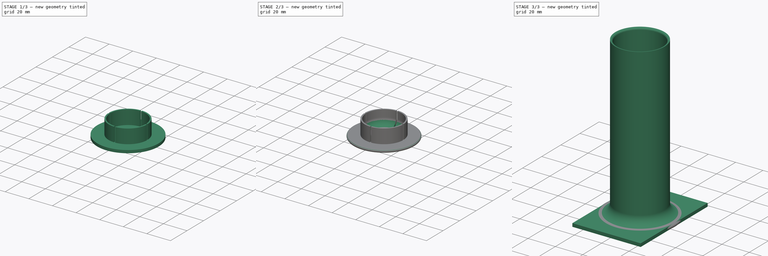
[diagram: build sequence overview — one tinted view per stage of 3, left to right]
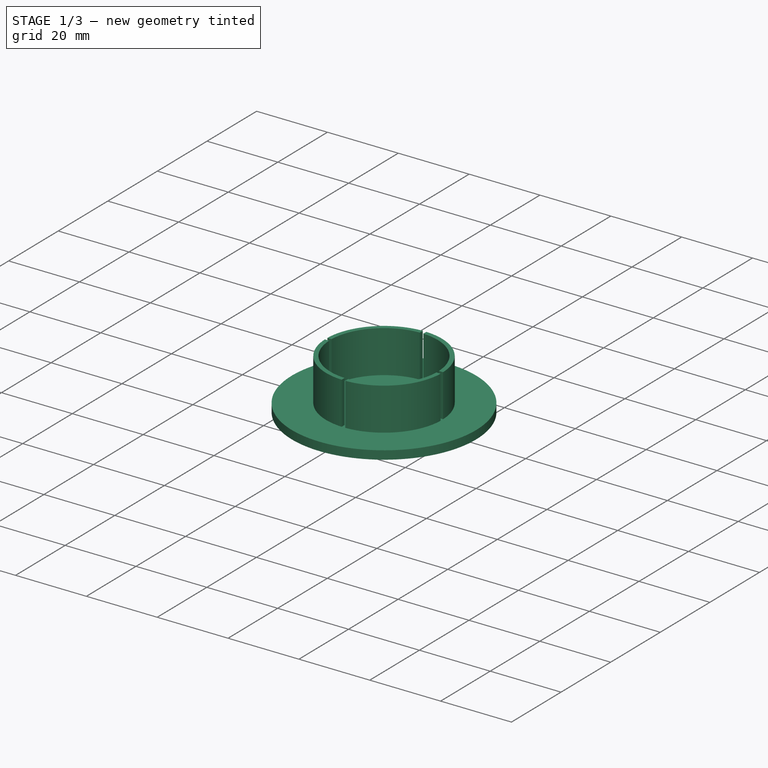
[diagram: stage 1 of 3 — iso view after this stage's code; geometry added in this stage tinted green]
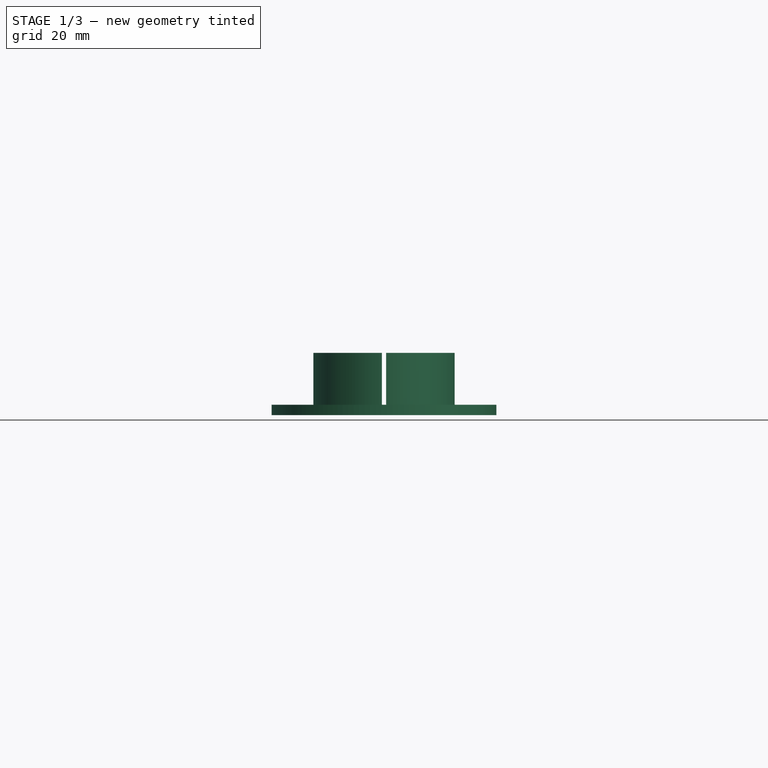
[diagram: stage 1 of 3 — front view after this stage's code; geometry added in this stage tinted green]
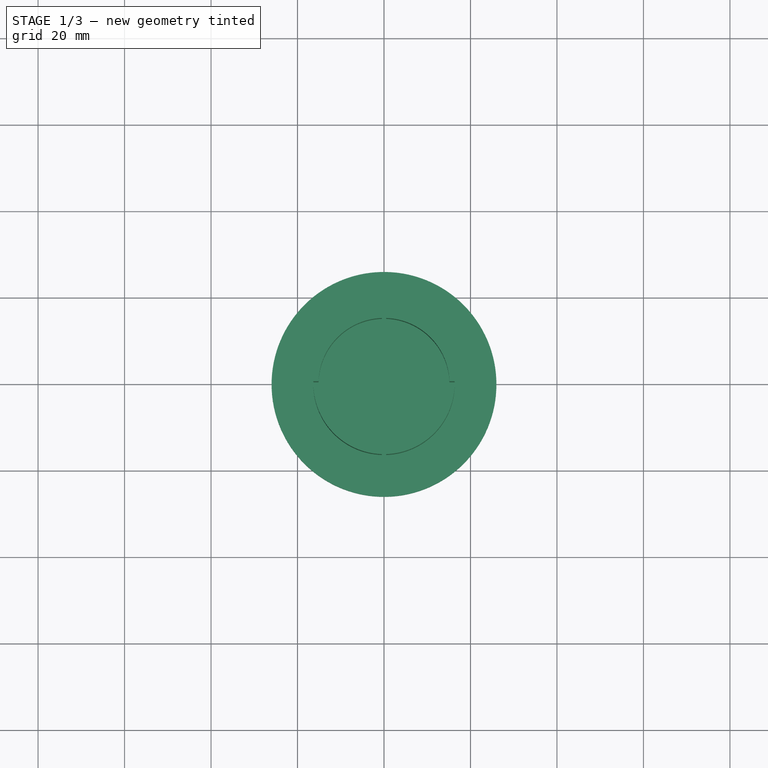
[diagram: stage 1 of 3 — top view after this stage's code; geometry added in this stage tinted green]
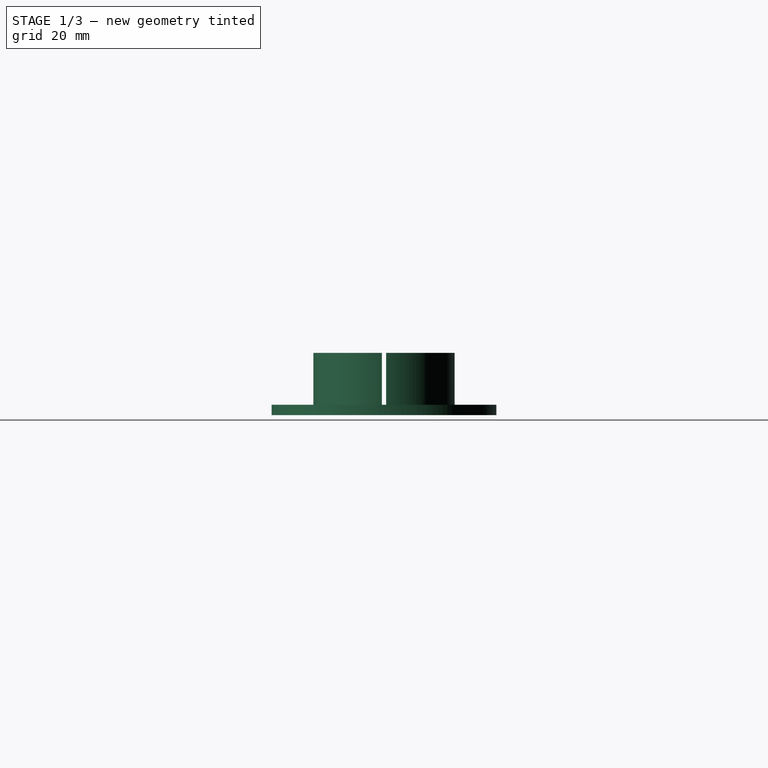
[diagram: stage 1 of 3 — right view after this stage's code; geometry added in this stage tinted green]
FCSTD DOCUMENT  (FreeCAD 0.18.3R)
Label: ToiletPaperHolder2
License: All rights reserved
LicenseURL: http://en.wikipedia.org/wiki/All_rights_reserved
objects: Sketcher::SketchObject×4, PartDesign::Pad×4, PartDesign::Fillet×4, PartDesign::Body×2, App::Part×1
note: 18 computed .brp shape members not serialized (recipe doc carries the construction recipe); baked Part::Feature solids carry a one-line shape summary decoded from their .brp

FEATURE [Sketcher::SketchObject] Sketch
  AttachmentOffset = pos=(0,0,2.4) rot=(0,0,1;0rad)
  MapMode = 5
  Placement = pos=(0,0,2.4) rot=(0,0,1;0rad)
  Support = -> [XY_Plane001]
  expr: AttachmentOffset.Base.z = Pad.Length
  sketch-geometry (3):
    g0: Circle CenterX=0 CenterY=0 CenterZ=0 NormalX=0 NormalY=0 NormalZ=1 AngleXU=0 Radius=18
    g1: Circle CenterX=0 CenterY=0 CenterZ=0 NormalX=0 NormalY=0 NormalZ=1 AngleXU=0 Radius=16.4
    g2: LineSegment [constr] StartX=0 StartY=16.4 StartZ=0 EndX=0 EndY=18 EndZ=0
  constraints (8):
    c: Coincident(g0,g-1)
    c: Radius(g0) = 18  'Outer'
    c: Coincident(g1,g0)
    c: PointOnObject(g2,g1)
    c: PointOnObject(g2,g0)
    c: Vertical(g2)
    c: PointOnObject(g0,g2)
    c: DistanceY(g2,g2) = 1.6  'WallThickness'
FEATURE [Sketcher::SketchObject] Sketch001
  MapMode = 5
  Support = -> [XY_Plane001]
  sketch-geometry (4):
    g0: LineSegment StartX=-25 StartY=35 StartZ=0 EndX=25 EndY=35 EndZ=0
    g1: LineSegment StartX=25 StartY=35 StartZ=0 EndX=25 EndY=-35 EndZ=0
    g2: LineSegment StartX=25 StartY=-35 StartZ=0 EndX=-25 EndY=-35 EndZ=0
    g3: LineSegment StartX=-25 StartY=-35 StartZ=0 EndX=-25 EndY=35 EndZ=0
  constraints (11):
    c: Coincident(g0,g1)
    c: Coincident(g1,g2)
    c: Coincident(g2,g3)
    c: Coincident(g3,g0)
    c: Horizontal(g0)
    c: Horizontal(g2)
    c: Vertical(g1)
    c: Vertical(g3)
    c: DistanceX(g0,g0) = 50  'BaseWidth'
    c: Symmetric(g2,g0,g-1)
    c: DistanceY(g3,g3) = 70
FEATURE [PartDesign::Pad] Pad
  Length = 2.4
  Length2 = 100
  Profile = -> Sketch001
  Type = 0
FEATURE [PartDesign::Pad] Pad002
  Length = 2.4
  Length2 = 100
  Profile = -> Sketch002
  Type = 0
FEATURE [Sketcher::SketchObject] Sketch003
  AttachmentOffset = pos=(0,0,2.4) rot=(0,0,1;0rad)
  MapMode = 5
  Placement = pos=(0,0,2.4) rot=(0,0,1;0rad)
  Support = -> [XY_Plane002]
  expr: Constraints[74] = Constraints.R - 1.2mm
  expr: Constraints.R = Sketch.Constraints.Outer - Sketch.Constraints.WallThickness - 0.05mm
  expr: AttachmentOffset.Base.z = Pad002.Length
  sketch-geometry (28):
    g0: LineSegment [constr] StartX=-15.1417 StartY=0.5 StartZ=0 EndX=-0.5 EndY=0.5 EndZ=0
    g1: LineSegment [constr] StartX=-0.5 StartY=0.5 StartZ=0 EndX=-0.5 EndY=15.1417 EndZ=0
    g2: LineSegment [constr] StartX=-0.5 StartY=15.1417 StartZ=0 EndX=0.5 EndY=15.1417 EndZ=0
    g3: LineSegment [constr] StartX=0.5 StartY=15.1417 StartZ=0 EndX=0.5 EndY=0.5 EndZ=0
    g4: LineSegment [constr] StartX=0.5 StartY=0.5 StartZ=0 EndX=15.1417 EndY=0.5 EndZ=0
    g5: LineSegment [constr] StartX=15.1417 StartY=0.5 StartZ=0 EndX=15.1417 EndY=-0.5 EndZ=0
    g6: LineSegment [constr] StartX=15.1417 StartY=-0.5 StartZ=0 EndX=0.5 EndY=-0.5 EndZ=0
    g7: LineSegment [constr] StartX=0.5 StartY=-0.5 StartZ=0 EndX=0.5 EndY=-15.1417 EndZ=0
    g8: LineSegment [constr] StartX=0.5 StartY=-15.1417 StartZ=0 EndX=-0.5 EndY=-15.1417 EndZ=0
    g9: LineSegment [constr] StartX=-0.5 StartY=-15.1417 StartZ=0 EndX=-0.5 EndY=-0.5 EndZ=0
    g10: LineSegment [constr] StartX=-0.5 StartY=-0.5 StartZ=0 EndX=-15.1417 EndY=-0.5 EndZ=0
    g11: LineSegment [constr] StartX=-15.1417 StartY=-0.5 StartZ=0 EndX=-15.1417 EndY=0.5 EndZ=0
    g12: ArcOfCircle CenterX=0 CenterY=0 CenterZ=0 NormalX=0 NormalY=0 NormalZ=1 AngleXU=0 Radius=15.15 StartAngle=1.60381 EndAngle=3.10858
    g13: ArcOfCircle CenterX=0 CenterY=0 CenterZ=0 NormalX=0 NormalY=0 NormalZ=1 AngleXU=0 Radius=15.15 StartAngle=0.0330093 EndAngle=1.53779
    g14: ArcOfCircle CenterX=0 CenterY=0 CenterZ=0 NormalX=0 NormalY=0 NormalZ=1 AngleXU=0 Radius=15.15 StartAngle=4.7454 EndAngle=6.25018
    g15: ArcOfCircle CenterX=0 CenterY=0 CenterZ=0 NormalX=0 NormalY=0 NormalZ=1 AngleXU=0 Radius=15.15 StartAngle=3.1746 EndAngle=4.67938
    g16: LineSegment StartX=-15.1417 StartY=-0.5 StartZ=0 EndX=-16.3424 EndY=-0.5 EndZ=0
    g17: ArcOfCircle CenterX=0 CenterY=0 CenterZ=0 NormalX=0 NormalY=0 NormalZ=1 AngleXU=0 Radius=16.35 StartAngle=3.17218 EndAngle=4.6818
    g18: LineSegment StartX=-0.5 StartY=-15.1417 StartZ=0 EndX=-0.5 EndY=-16.3424 EndZ=0
    g19: LineSegment StartX=-15.1417 StartY=0.5 StartZ=0 EndX=-16.3424 EndY=0.5 EndZ=0
    g20: LineSegment StartX=-0.5 StartY=15.1417 StartZ=0 EndX=-0.5 EndY=16.3424 EndZ=0
    g21: LineSegment StartX=0.5 StartY=15.1417 StartZ=0 EndX=0.5 EndY=16.3424 EndZ=0
    g22: LineSegment StartX=15.1417 StartY=0.5 StartZ=0 EndX=16.3424 EndY=0.5 EndZ=0
    g23: LineSegment StartX=15.1417 StartY=-0.5 StartZ=0 EndX=16.3424 EndY=-0.5 EndZ=0
    g24: LineSegment StartX=0.5 StartY=-15.1417 StartZ=0 EndX=0.5 EndY=-16.3424 EndZ=0
    g25: ArcOfCircle CenterX=0 CenterY=0 CenterZ=0 NormalX=0 NormalY=0 NormalZ=1 AngleXU=0 Radius=16.35 StartAngle=1.60138 EndAngle=3.11101
    g26: ArcOfCircle CenterX=0 CenterY=0 CenterZ=0 NormalX=0 NormalY=0 NormalZ=1 AngleXU=0 Radius=16.35 StartAngle=0.0305858 EndAngle=1.54021
    g27: ArcOfCircle CenterX=0 CenterY=0 CenterZ=0 NormalX=0 NormalY=0 NormalZ=1 AngleXU=0 Radius=16.35 StartAngle=4.74297 EndAngle=6.2526
  constraints (75):
    c: Horizontal(g0)
    c: Coincident(g0,g1)
    c: Vertical(g1)
    c: Coincident(g1,g2)
    c: Coincident(g2,g3)
    c: Vertical(g3)
    c: Coincident(g3,g4)
    c: Horizontal(g4)
    c: Coincident(g4,g5)
    c: Vertical(g5)
    c: Coincident(g5,g6)
    c: Horizontal(g6)
    c: Coincident(g6,g7)
    c: Coincident(g7,g8)
    c: Coincident(g8,g9)
    c: Coincident(g9,g10)
    c: Coincident(g10,g11)
    c: Coincident(g11,g0)
    c: Equal(g11,g2)
    c: Equal(g2,g5)
    c: Equal(g5,g8)
    c: Equal(g1,g0)
    c: Equal(g0,g10)
    c: Equal(g10,g9)
    c: Equal(g9,g7)
    c: Equal(g7,g6)
    c: Equal(g6,g4)
    c: Equal(g4,g3)
    c: Symmetric(g9,g3,g-1)
    c: Coincident(g12,g-1)
    c: Coincident(g12,g0)
    c: Coincident(g12,g1)
    c: Coincident(g13,g12)
    c: Coincident(g13,g2)
    c: Coincident(g13,g4)
    c: Coincident(g14,g12)
    c: Coincident(g14,g5)
    c: Coincident(g14,g7)
    c: Coincident(g15,g12)
    c: Coincident(g15,g8)
    c: Coincident(g15,g10)
    c: DistanceY(g11,g11) = 1
    c: Coincident(g16,g15)
    c: Horizontal(g16)
    c: Coincident(g17,g12)
    c: Coincident(g17,g16)
    c: Coincident(g18,g15)
    c: Coincident(g18,g17)
    c: Vertical(g18)
    c: Coincident(g19,g12)
    c: Horizontal(g19)
    c: Coincident(g20,g12)
    c: Vertical(g20)
    c: Coincident(g21,g13)
    c: Vertical(g21)
    c: Coincident(g22,g13)
    c: Horizontal(g22)
    c: Coincident(g23,g14)
    c: Horizontal(g23)
    c: Coincident(g24,g14)
    c: Vertical(g24)
    c: Coincident(g25,g12)
    c: Coincident(g25,g19)
    c: Coincident(g25,g20)
    c: Coincident(g26,g12)
    c: Coincident(g26,g21)
    c: Coincident(g26,g22)
    c: Coincident(g27,g12)
    c: Coincident(g27,g23)
    c: Coincident(g27,g24)
    c: Equal(g27,g17)
    c: Equal(g17,g26)
    c: Equal(g26,g25)
    c: Radius(g26) = 16.35  'R'
    c: Radius(g13) = 15.15
FEATURE [PartDesign::Pad] Pad003
  BaseFeature = -> Pad002
  Length = 12
  Length2 = 100
  Profile = -> Sketch003
  Type = 0
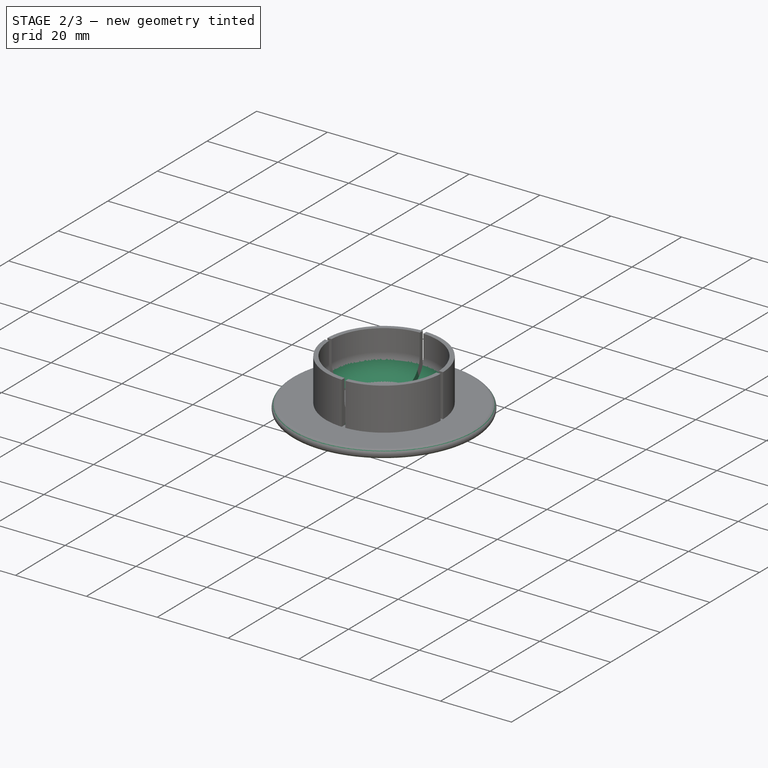
[diagram: stage 2 of 3 — iso view after this stage's code; geometry added in this stage tinted green]
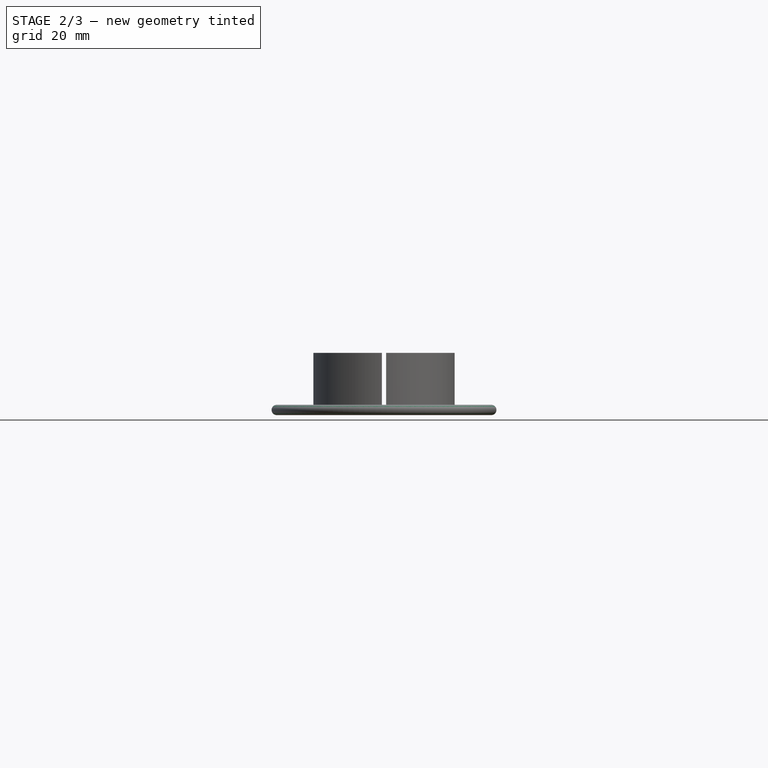
[diagram: stage 2 of 3 — front view after this stage's code; geometry added in this stage tinted green]
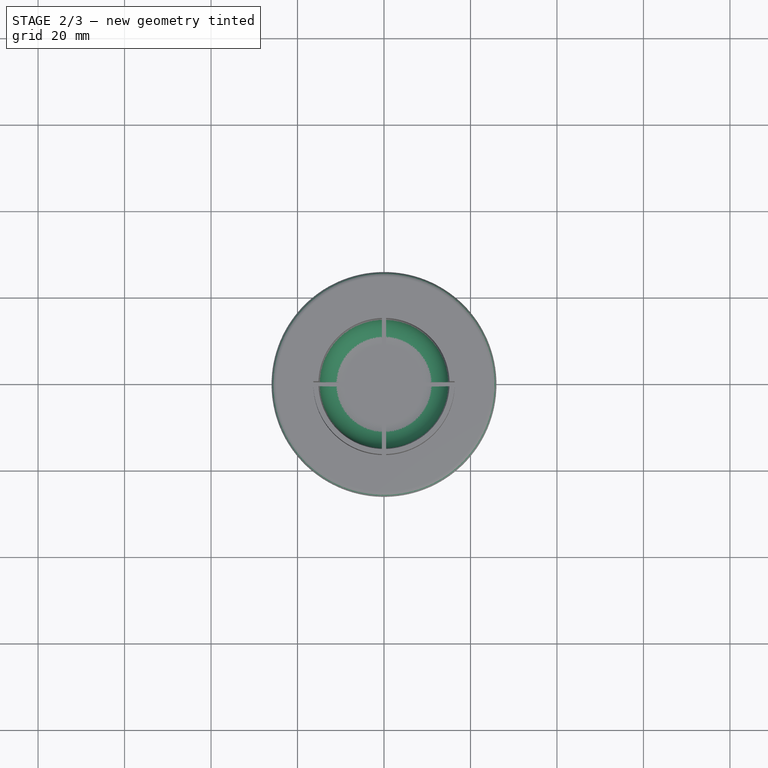
[diagram: stage 2 of 3 — top view after this stage's code; geometry added in this stage tinted green]
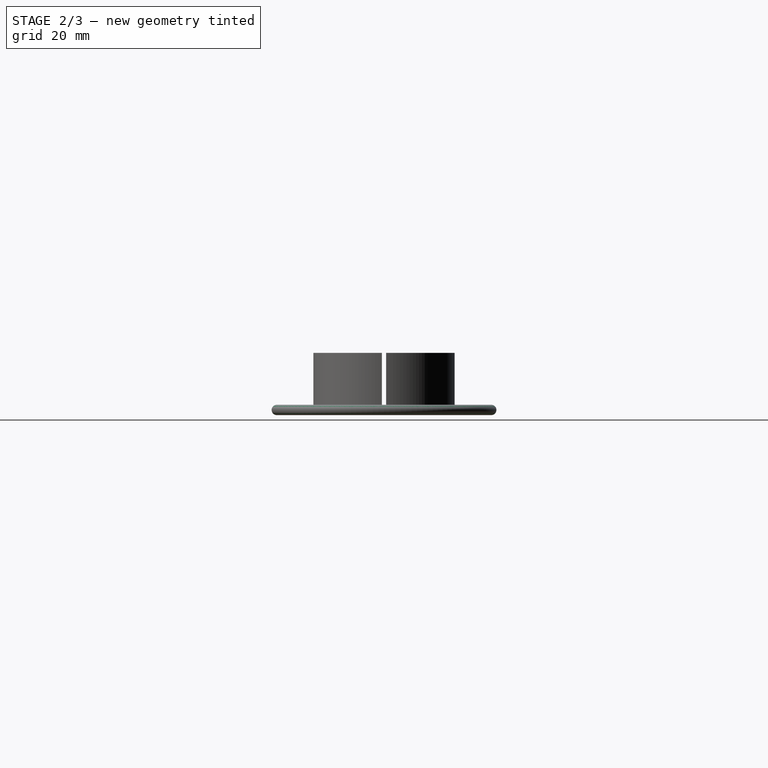
[diagram: stage 2 of 3 — right view after this stage's code; geometry added in this stage tinted green]
FEATURE [PartDesign::Fillet] Fillet002
  Base = -> Pad003 [Edge11,Edge19,Edge15,Edge7]
  BaseFeature = -> Pad003
  Radius = 6
FEATURE [PartDesign::Body] Body
  Group = -> [Sketch001,Pad,Sketch,Pad001,Fillet,Fillet003]
  Origin = -> Origin001
  Tip = -> Fillet003
FEATURE [PartDesign::Fillet] Fillet004
  Base = -> Fillet002 [Face6]
  BaseFeature = -> Fillet002
  Radius = 1.19
  expr: Radius = Pad002.Length / 2 - 0.01mm
FEATURE [PartDesign::Body] Body001
  Group = -> [Sketch002,Pad002,Sketch003,Pad003,Fillet002,Fillet004]
  Origin = -> Origin002
  Placement = pos=(60,0,0) rot=(0,0,1;0rad)
  Tip = -> Fillet004
FEATURE [App::Part] Part
  Group = -> [Body,Body001]
  Origin = -> Origin
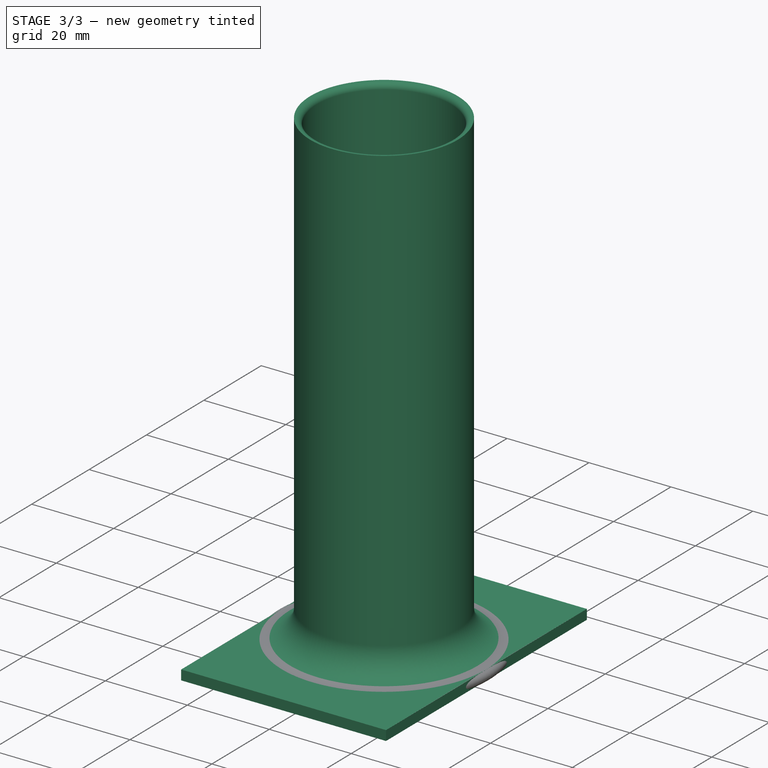
[diagram: stage 3 of 3 — iso view after this stage's code; geometry added in this stage tinted green]
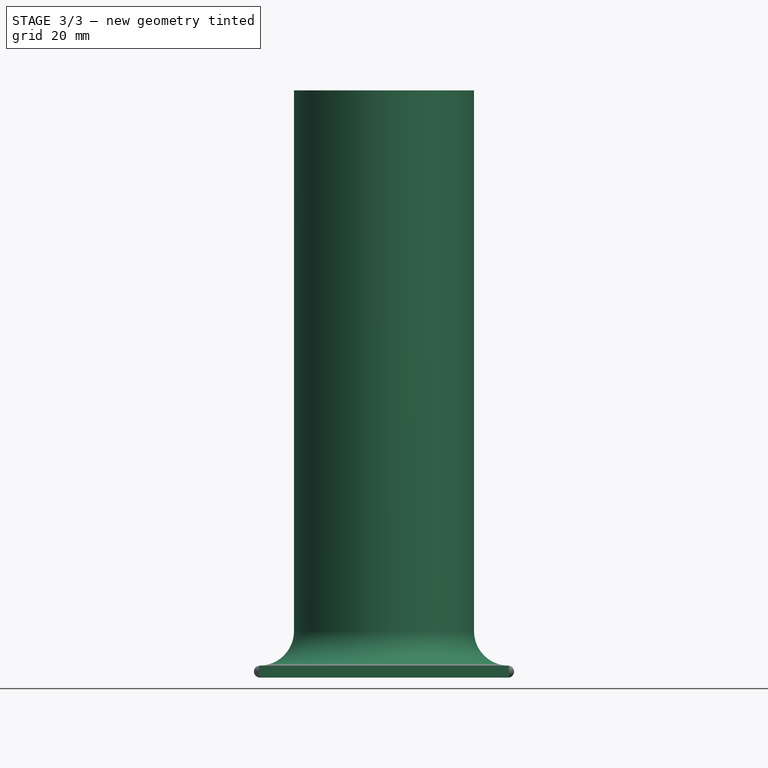
[diagram: stage 3 of 3 — front view after this stage's code; geometry added in this stage tinted green]
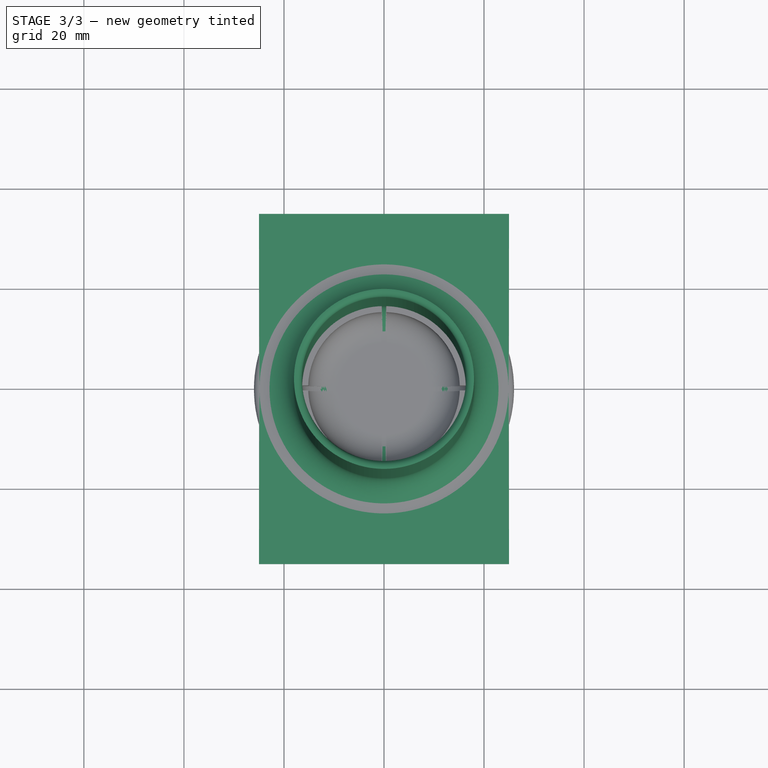
[diagram: stage 3 of 3 — top view after this stage's code; geometry added in this stage tinted green]
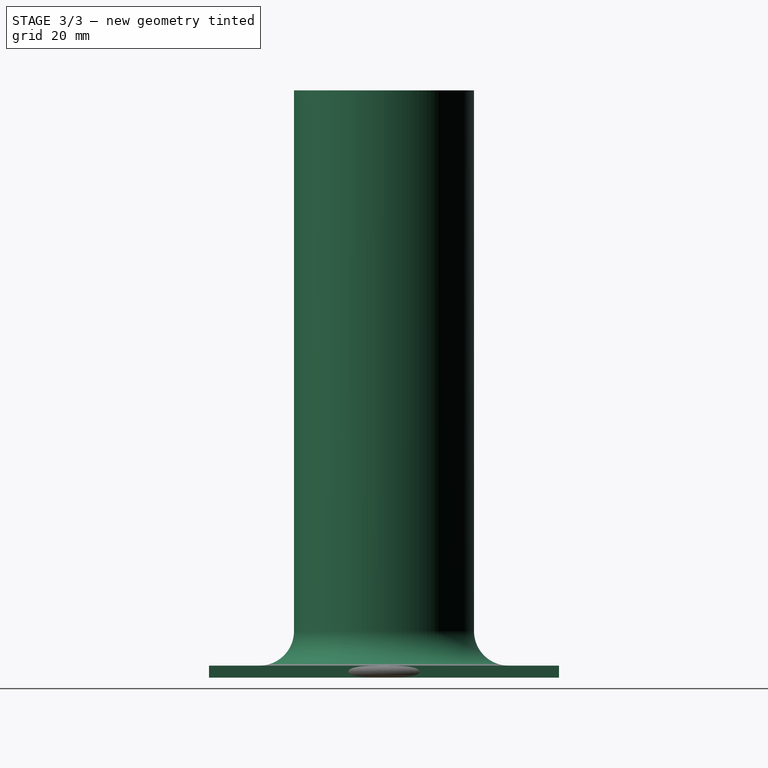
[diagram: stage 3 of 3 — right view after this stage's code; geometry added in this stage tinted green]
FEATURE [PartDesign::Pad] Pad001
  BaseFeature = -> Pad
  Length = 115
  Length2 = 100
  Profile = -> Sketch
  Type = 0
FEATURE [Sketcher::SketchObject] Sketch002
  MapMode = 5
  Support = -> [XY_Plane002]
  expr: Constraints[1] = Sketch.Constraints.Outer + 8mm
  sketch-geometry (1):
    g0: Circle CenterX=0 CenterY=0 CenterZ=0 NormalX=0 NormalY=0 NormalZ=1 AngleXU=0 Radius=26
  constraints (2):
    c: Coincident(g0,g-1)
    c: Radius(g0) = 26
FEATURE [PartDesign::Fillet] Fillet
  Base = -> Pad001 [Edge13,Face10]
  BaseFeature = -> Pad001
  Radius = 6.9
  expr: Radius = (Sketch001.Constraints.BaseWidth - Sketch.Constraints.Outer * 2) / 2 - 0.1mm
FEATURE [PartDesign::Fillet] Fillet003
  Base = -> Fillet [Edge18]
  BaseFeature = -> Fillet
  Radius = 1.4
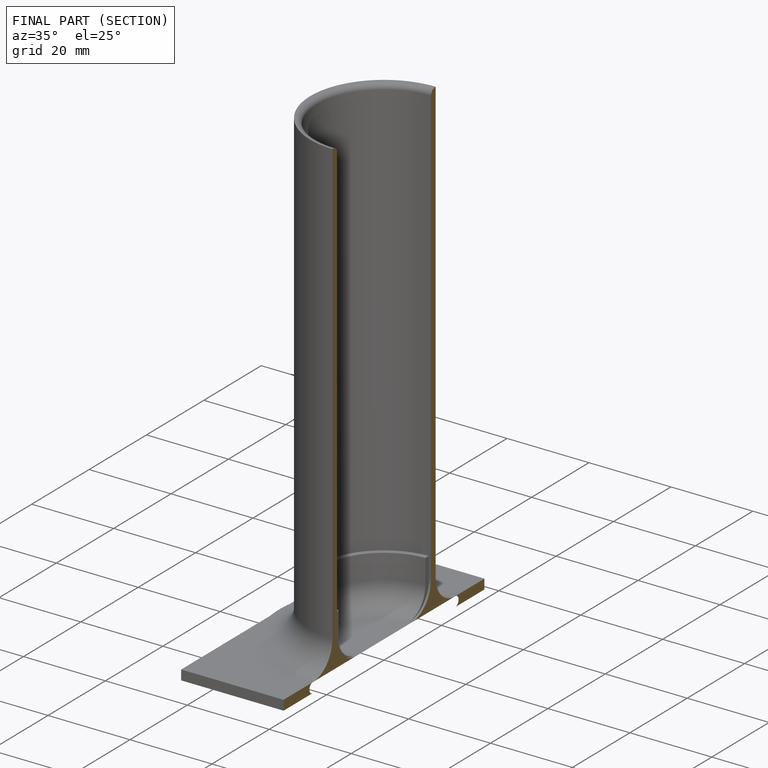
[diagram: finished part — half-section view (interior)]
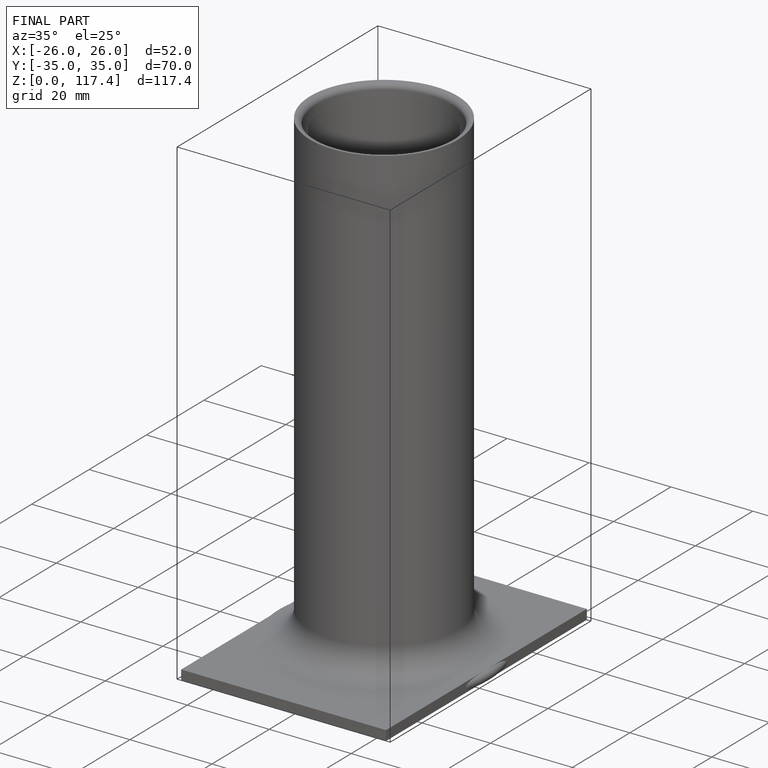
[diagram: finished part — iso view with bounding-box wireframe]
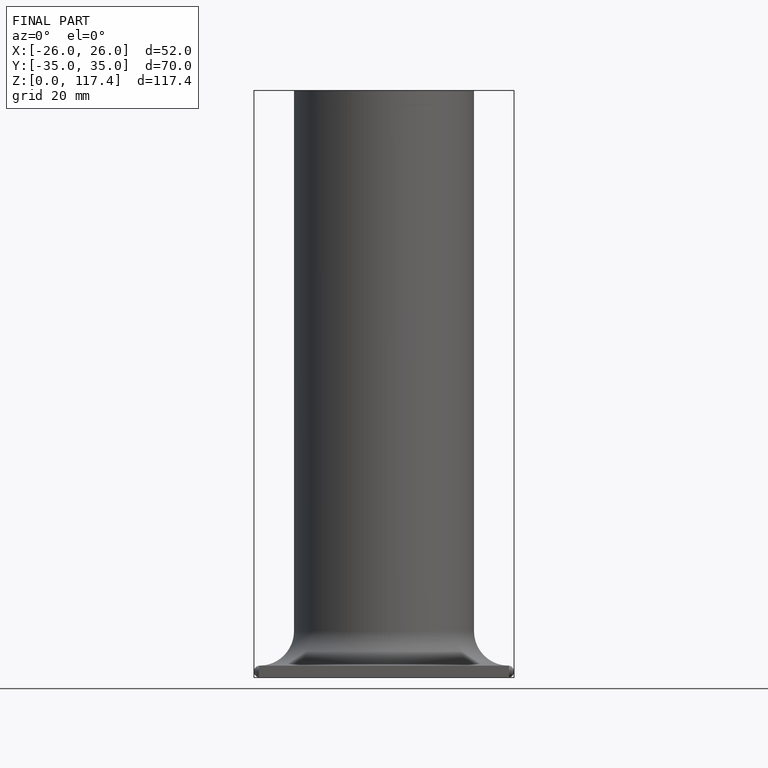
[diagram: finished part — front view with bounding-box wireframe]
